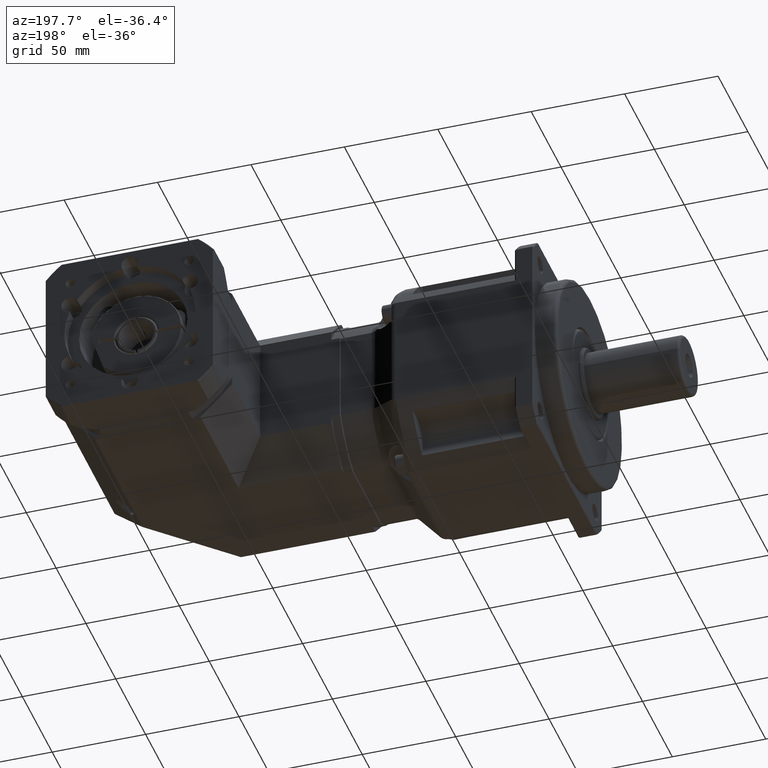
[diagram: clean part render]
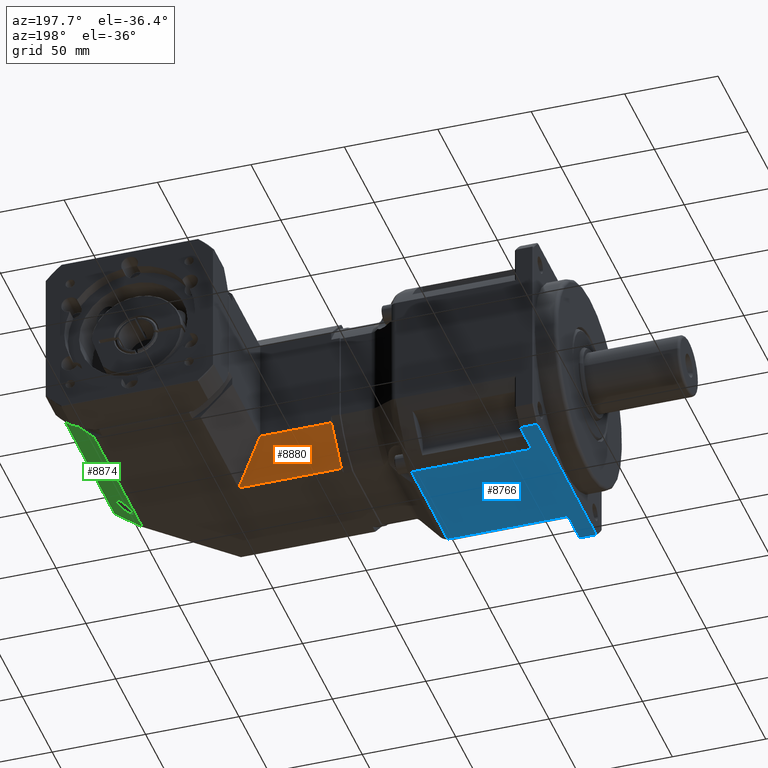
[diagram: same view with three faces highlighted in distinct colors, each labeled with its STEP entity id]
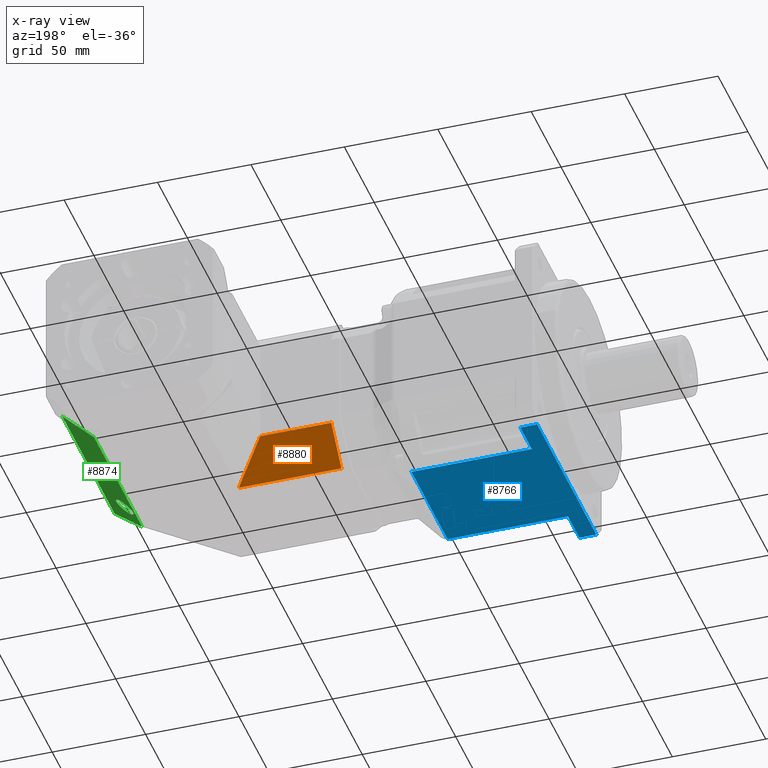
[diagram: x-ray of the same camera — body ghosted, the three highlighted faces saturated]
A machine part, auxiliary view with three faces highlighted in distinct colors.
The next image is the same camera in x-ray (body ghosted, the three faces saturated) — at least one of them is partly hidden behind the body in this view.
Their STEP definitions:

[orange] entity #8880 — the highlighted planar face has unit normal (0, 0.7071, -0.7071).
#581=LINE('',#15274,#1044);
#584=LINE('',#15279,#1047);
#586=LINE('',#15285,#1049);
#587=LINE('',#15286,#1050);
#1044=VECTOR('',#11647,55.0000000000582);
#1047=VECTOR('',#11652,24.0416305603426);
#1049=VECTOR('',#11658,38.0000000000582);
#1050=VECTOR('',#11659,29.4448637286709);
#2522=FACE_OUTER_BOUND('',#3250,.T.);
#3250=EDGE_LOOP('',(#7331,#7332,#7333,#7334));
#4520=VERTEX_POINT('',#15271);
#4521=VERTEX_POINT('',#15273);
#4522=VERTEX_POINT('',#15278);
#4524=VERTEX_POINT('',#15284);
#5535=EDGE_CURVE('',#4521,#4520,#581,.T.);
#5538=EDGE_CURVE('',#4520,#4522,#584,.T.);
#5541=EDGE_CURVE('',#4522,#4524,#586,.T.);
#5542=EDGE_CURVE('',#4521,#4524,#587,.T.);
#7331=ORIENTED_EDGE('',*,*,#5535,.T.);
#7332=ORIENTED_EDGE('',*,*,#5538,.T.);
#7333=ORIENTED_EDGE('',*,*,#5541,.T.);
#7334=ORIENTED_EDGE('',*,*,#5542,.F.);
#8405=PLANE('',#9763);
#8880=ADVANCED_FACE('',(#2522),#8405,.T.);
#9763=AXIS2_PLACEMENT_3D('',#15283,#11656,#11657);
#11647=DIRECTION('',(-1.,-6.05780371977596E-16,-6.0578969981121E-16));
#11652=DIRECTION('',(-8.56709413644537E-16,0.707106781186547,0.707106781186548));
#11656=DIRECTION('center_axis',(6.5957744017217E-21,0.707106781186548,-0.707106781186547));
#11657=DIRECTION('ref_axis',(1.,0.,7.105427357601E-16));
#11658=DIRECTION('',(1.,6.05780371977596E-16,6.0578969981121E-16));
#11659=DIRECTION('',(-0.577350269189627,0.577350269189625,0.577350269189626));
#15271=CARTESIAN_POINT('',(-7.31456348563857,64.5608220023816,32.875721489125));
#15273=CARTESIAN_POINT('',(47.6854365144196,64.5608220023816,32.875721489125));
#15274=CARTESIAN_POINT('',(-12.3145634856386,64.5608220023815,32.875721489125));
#15278=CARTESIAN_POINT('',(-7.31456348563859,81.5608220023815,49.875721489125));
#15279=CARTESIAN_POINT('',(-7.31456348563858,73.0608220023815,41.375721489125));
#15283=CARTESIAN_POINT('Origin',(-12.3145634856386,73.0608220023815,41.375721489125));
#15284=CARTESIAN_POINT('',(30.6854365144196,81.5608220023816,49.875721489125));
#15285=CARTESIAN_POINT('',(-12.3145634856386,81.5608220023815,49.875721489125));
#15286=CARTESIAN_POINT('',(47.6854365144196,64.5608220023816,32.875721489125));

[blue] entity #8766 — the highlighted planar face has unit normal (-0, 0, -1).
#64=B_SPLINE_CURVE_WITH_KNOTS('',3,(#14081,#14082,#14083,#14084),
 .UNSPECIFIED.,.F.,.F.,(4,4),(0.0511913044943285,0.0680303419260098),
 .UNSPECIFIED.);
#65=B_SPLINE_CURVE_WITH_KNOTS('',3,(#14087,#14088,#14089,#14090),
 .UNSPECIFIED.,.F.,.F.,(4,4),(0.,0.0168549139923417),.UNSPECIFIED.);
#447=LINE('',#13903,#910);
#460=LINE('',#13971,#923);
#465=LINE('',#14009,#928);
#472=LINE('',#14075,#935);
#473=LINE('',#14077,#936);
#474=LINE('',#14078,#937);
#475=LINE('',#14079,#938);
#476=LINE('',#14086,#939);
#910=VECTOR('',#11085,9.);
#923=VECTOR('',#11128,64.261255285636);
#928=VECTOR('',#11161,64.261255285636);
#935=VECTOR('',#11230,19.3856902266917);
#936=VECTOR('',#11231,9.);
#937=VECTOR('',#11232,99.3931587182941);
#938=VECTOR('',#11233,19.3856902266917);
#939=VECTOR('',#11234,60.6097154880099);
#2408=FACE_OUTER_BOUND('',#3107,.T.);
#3107=EDGE_LOOP('',(#6797,#6798,#6799,#6800,#6801,#6802,#6803,#6804,#6805,
#6806));
#4298=VERTEX_POINT('',#13899);
#4300=VERTEX_POINT('',#13902);
#4321=VERTEX_POINT('',#13964);
#4322=VERTEX_POINT('',#13970);
#4335=VERTEX_POINT('',#14006);
#4336=VERTEX_POINT('',#14008);
#4359=VERTEX_POINT('',#14074);
#4360=VERTEX_POINT('',#14076);
#4361=VERTEX_POINT('',#14080);
#4362=VERTEX_POINT('',#14085);
#5209=EDGE_CURVE('',#4300,#4298,#447,.T.);
#5237=EDGE_CURVE('',#4322,#4321,#460,.T.);
#5254=EDGE_CURVE('',#4336,#4335,#465,.T.);
#5284=EDGE_CURVE('',#4359,#4335,#472,.T.);
#5285=EDGE_CURVE('',#4359,#4360,#473,.T.);
#5286=EDGE_CURVE('',#4300,#4360,#474,.T.);
#5287=EDGE_CURVE('',#4322,#4298,#475,.T.);
#5288=EDGE_CURVE('',#4361,#4321,#64,.T.);
#5289=EDGE_CURVE('',#4362,#4361,#476,.T.);
#5290=EDGE_CURVE('',#4336,#4362,#65,.T.);
#6797=ORIENTED_EDGE('',*,*,#5284,.F.);
#6798=ORIENTED_EDGE('',*,*,#5285,.T.);
#6799=ORIENTED_EDGE('',*,*,#5286,.F.);
#6800=ORIENTED_EDGE('',*,*,#5209,.T.);
#6801=ORIENTED_EDGE('',*,*,#5287,.F.);
#6802=ORIENTED_EDGE('',*,*,#5237,.T.);
#6803=ORIENTED_EDGE('',*,*,#5288,.F.);
#6804=ORIENTED_EDGE('',*,*,#5289,.F.);
#6805=ORIENTED_EDGE('',*,*,#5290,.F.);
#6806=ORIENTED_EDGE('',*,*,#5254,.T.);
#8346=PLANE('',#9606);
#8766=ADVANCED_FACE('',(#2408),#8346,.T.);
#9606=AXIS2_PLACEMENT_3D('',#14073,#11228,#11229);
#11085=DIRECTION('',(1.,-3.12250225675824E-16,-7.28688222839997E-17));
#11128=DIRECTION('',(1.,-3.12250225675824E-16,-7.28688222839997E-17));
#11161=DIRECTION('',(-1.,3.12250225675824E-16,7.28688222839997E-17));
#11228=DIRECTION('center_axis',(-7.28688222839994E-17,8.87424192101875E-16,
-1.));
#11229=DIRECTION('ref_axis',(0.,-1.,-7.105427357601E-16));
#11230=DIRECTION('',(3.12250225675824E-16,1.,8.87424192101875E-16));
#11231=DIRECTION('',(-1.,3.12250225675824E-16,7.28688222839997E-17));
#11232=DIRECTION('',(-3.12250225675824E-16,-1.,-8.87424192101875E-16));
#11233=DIRECTION('',(3.12250225675824E-16,1.,8.87424192101875E-16));
#11234=DIRECTION('',(-7.14557014810837E-16,1.,1.11124123188279E-15));
#13899=CARTESIAN_POINT('',(-109.814563485638,85.7574013615286,20.875721489125));
#13902=CARTESIAN_POINT('',(-118.814563485638,85.7574013615286,20.875721489125));
#13903=CARTESIAN_POINT('',(-53.3145634856383,85.7574013615286,20.875721489125));
#13964=CARTESIAN_POINT('',(-45.5533082000025,66.3717111348369,20.875721489125));
#13970=CARTESIAN_POINT('',(-109.814563485638,66.3717111348369,20.875721489125));
#13971=CARTESIAN_POINT('',(-53.3145634856383,66.3717111348369,20.875721489125));
#14006=CARTESIAN_POINT('',(-109.814563485638,5.74993286992626,20.875721489125));
#14008=CARTESIAN_POINT('',(-45.5533082000025,5.7499328699262,20.875721489125));
#14009=CARTESIAN_POINT('',(-53.3145634856383,5.74993286992624,20.875721489125));
#14073=CARTESIAN_POINT('Origin',(-53.3145634856383,93.5608220023816,20.875721489125));
#14074=CARTESIAN_POINT('',(-109.814563485638,-13.6357573567655,20.875721489125));
#14075=CARTESIAN_POINT('',(-109.814563485638,64.8108220023816,20.875721489125));
#14076=CARTESIAN_POINT('',(-118.814563485638,-13.6357573567655,20.875721489125));
#14077=CARTESIAN_POINT('',(-53.3145634856383,-13.6357573567655,20.8757214891249));
#14078=CARTESIAN_POINT('',(-118.814563485638,64.8108220023816,20.875721489125));
#14079=CARTESIAN_POINT('',(-109.814563485638,64.8108220023816,20.875721489125));
#14080=CARTESIAN_POINT('',(-45.3856312975041,66.3656797463865,20.875721489125));
#14081=CARTESIAN_POINT('Ctrl Pts',(-45.3856821448553,66.3656139071502,20.875847672604));
#14082=CARTESIAN_POINT('Ctrl Pts',(-45.4413064775285,66.3696611872008,20.8757674819071));
#14083=CARTESIAN_POINT('Ctrl Pts',(-45.4971905326472,66.3717113076763,20.8757216729296));
#14084=CARTESIAN_POINT('Ctrl Pts',(-45.5533082000025,66.3717111093537,20.875721568432));
#14085=CARTESIAN_POINT('',(-45.385631297504,5.75596425837662,20.8757214891249));
#14086=CARTESIAN_POINT('',(-45.3856312975041,79.9662665686092,20.875721489125));
#14087=CARTESIAN_POINT('Ctrl Pts',(-45.5533082000025,5.74993289710593,20.8757215772086));
#14088=CARTESIAN_POINT('Ctrl Pts',(-45.4971283372239,5.74993268362875,20.8757216897164));
#14089=CARTESIAN_POINT('Ctrl Pts',(-45.4412443700356,5.75198804037234,20.8757672100691));
#14090=CARTESIAN_POINT('Ctrl Pts',(-45.3856821448673,5.75603005656793,20.8758477034154));

[green] entity #8874 — the highlighted planar face has unit normal (0.7071, 0, -0.7071).
#187=ELLIPSE('',#9755,6.36396103067893,4.5);
#538=LINE('',#15169,#1001);
#554=LINE('',#15213,#1017);
#567=LINE('',#15241,#1030);
#568=LINE('',#15243,#1031);
#1001=VECTOR('',#11550,24.0416305603426);
#1017=VECTOR('',#11590,88.);
#1030=VECTOR('',#11619,25.0516378895343);
#1031=VECTOR('',#11622,80.9583694396574);
#1922=FACE_BOUND('',#3244,.T.);
#2516=FACE_OUTER_BOUND('',#3243,.T.);
#3243=EDGE_LOOP('',(#7295,#7296,#7297,#7298));
#3244=EDGE_LOOP('',(#7299));
#4485=VERTEX_POINT('',#15167);
#4486=VERTEX_POINT('',#15168);
#4498=VERTEX_POINT('',#15199);
#4509=VERTEX_POINT('',#15239);
#4510=VERTEX_POINT('',#15244);
#5482=EDGE_CURVE('',#4485,#4486,#538,.T.);
#5505=EDGE_CURVE('',#4486,#4498,#554,.T.);
#5519=EDGE_CURVE('',#4498,#4509,#567,.T.);
#5520=EDGE_CURVE('',#4509,#4485,#568,.T.);
#5521=EDGE_CURVE('',#4510,#4510,#187,.T.);
#7295=ORIENTED_EDGE('',*,*,#5520,.T.);
#7296=ORIENTED_EDGE('',*,*,#5482,.T.);
#7297=ORIENTED_EDGE('',*,*,#5505,.T.);
#7298=ORIENTED_EDGE('',*,*,#5519,.T.);
#7299=ORIENTED_EDGE('',*,*,#5521,.T.);
#8399=PLANE('',#9754);
#8874=ADVANCED_FACE('',(#2516,#1922),#8399,.T.);
#9754=AXIS2_PLACEMENT_3D('',#15242,#11620,#11621);
#9755=AXIS2_PLACEMENT_3D('',#15245,#11623,#11624);
#11550=DIRECTION('',(0.707106781186547,7.20611971568264E-17,0.707106781186548));
#11590=DIRECTION('',(6.05780371977596E-16,-1.,-3.33066907387546E-16));
#11619=DIRECTION('',(-0.678598344545848,0.281084637714819,-0.678598344545847));
#11620=DIRECTION('center_axis',(0.707106781186548,6.63865277737633E-16,
-0.707106781186547));
#11621=DIRECTION('ref_axis',(0.707106781186548,1.77635683940025E-16,0.707106781186548));
#11622=DIRECTION('',(-6.05780371977596E-16,1.,3.33066907387546E-16));
#11623=DIRECTION('center_axis',(-0.707106781186548,-6.63865277737633E-16,
0.707106781186547));
#11624=DIRECTION('ref_axis',(-0.707106781186547,-1.92837540132501E-16,-0.707106781186548));
#15167=CARTESIAN_POINT('',(104.685436514361,128.560822002382,32.8757214891251));
#15168=CARTESIAN_POINT('',(121.685436514361,128.560822002382,49.8757214891251));
#15169=CARTESIAN_POINT('',(113.185436514365,128.560822002382,41.3757214891287));
#15199=CARTESIAN_POINT('',(121.685436514361,40.5608220023816,49.8757214891251));
#15213=CARTESIAN_POINT('',(121.685436514361,13.3108220023816,49.8757214891251));
#15239=CARTESIAN_POINT('',(104.685436514361,47.6024525627242,32.8757214891251));
#15241=CARTESIAN_POINT('',(121.685436514361,40.5608220023816,49.8757214891251));
#15242=CARTESIAN_POINT('Origin',(113.185436514361,13.3108220023816,41.3757214891251));
#15243=CARTESIAN_POINT('',(104.685436514361,13.3108220023816,32.8757214891251));
#15244=CARTESIAN_POINT('',(114.913219845544,59.0233220023816,43.1035048203247));
#15245=CARTESIAN_POINT('Origin',(110.413219845561,59.0233220023816,38.6035048203247));